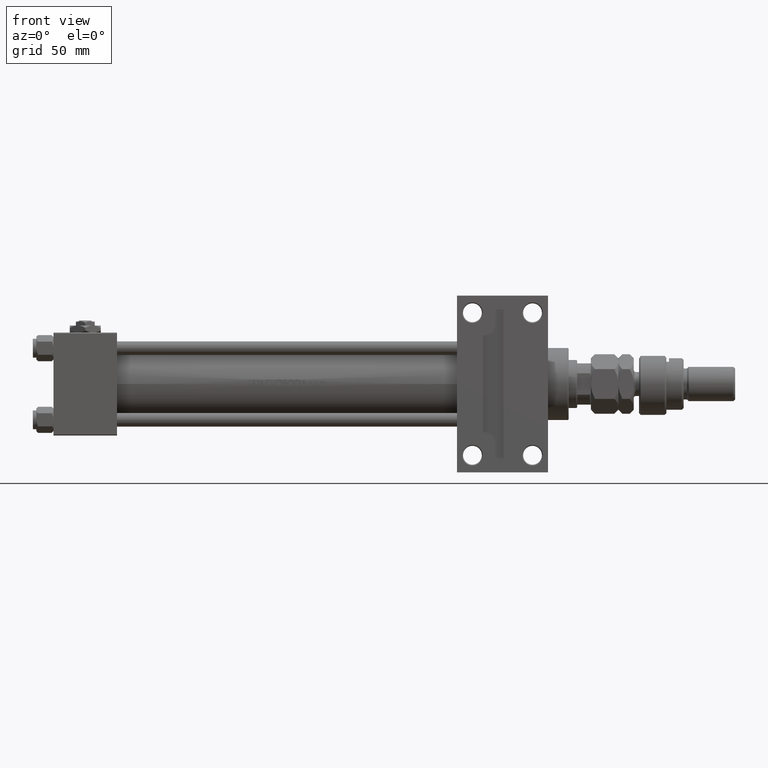
[diagram: clean part render]
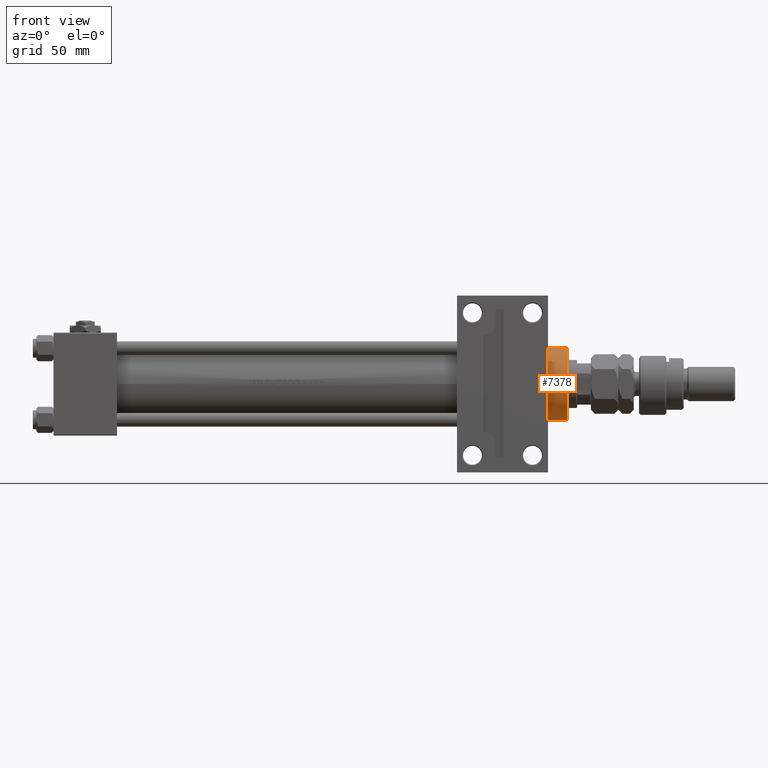
[diagram: same view with one face highlighted and labeled with its STEP entity id]
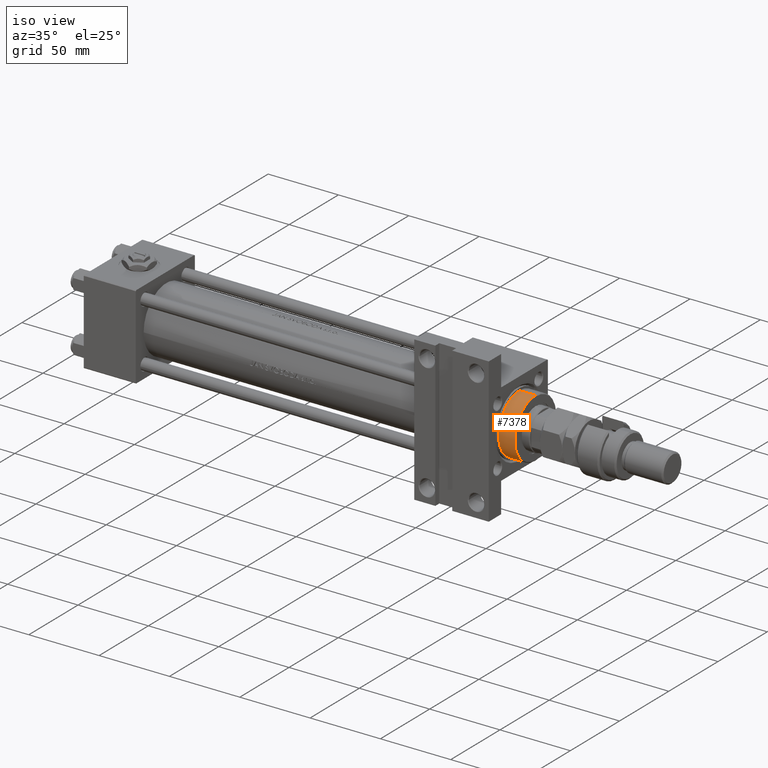
[diagram: same view with one face highlighted and labeled with its STEP entity id]
A machine part, front view. The second image highlights one B-rep face of the part: STEP entity #7378.
A second angle (iso view) of the same face is appended — the face is thin or edge-on in the first view.
In plain terms, the highlighted cylindrical surface (edge-blend (fillet) strip) has radius 21 mm, axis along (-1, 0, 0).
Its self-contained STEP definition (entity closure, byte-faithful):
#388 = DIRECTION ( 'NONE',  ( 1.000000000000000000, 0.000000000000000000, 0.000000000000000000 ) ) ;
#1167 = EDGE_LOOP ( 'NONE', ( #6763, #34110, #52890, #28344 ) ) ;
#1184 = DIRECTION ( 'NONE',  ( -1.000000000000000000, 0.000000000000000000, 0.000000000000000000 ) ) ;
#1404 = CARTESIAN_POINT ( 'NONE',  ( -21.00000000000000000, 0.000000000000000000, 28.69999999999999929 ) ) ;
#4187 = CARTESIAN_POINT ( 'NONE',  ( 21.00000000000000000, 2.571758278209441661E-15, 40.19999999999998863 ) ) ;
#6087 = CARTESIAN_POINT ( 'NONE',  ( 21.00000000000000000, 2.571758278209441661E-15, 40.70000000000000284 ) ) ;
#6763 = ORIENTED_EDGE ( 'NONE', *, *, #15340, .T. ) ;
#7378 = ADVANCED_FACE ( 'NONE', ( #18941 ), #27079, .T. ) ;
#8698 = VERTEX_POINT ( 'NONE', #19551 ) ;
#10091 = VERTEX_POINT ( 'NONE', #18767 ) ;
#11218 = DIRECTION ( 'NONE',  ( 0.000000000000000000, 0.000000000000000000, 1.000000000000000000 ) ) ;
#13637 = CARTESIAN_POINT ( 'NONE',  ( 0.000000000000000000, 0.000000000000000000, 40.19999999999998863 ) ) ;
#15340 = EDGE_CURVE ( 'NONE', #8698, #28115, #35192, .T. ) ;
#15732 = VERTEX_POINT ( 'NONE', #1404 ) ;
#15814 = DIRECTION ( 'NONE',  ( 1.000000000000000000, 0.000000000000000000, 0.000000000000000000 ) ) ;
#16694 = CIRCLE ( 'NONE', #47906, 21.00000000000000000 ) ;
#18767 = CARTESIAN_POINT ( 'NONE',  ( 21.00000000000000000, 2.571758278209441661E-15, 28.69999999999999929 ) ) ;
#18941 = FACE_OUTER_BOUND ( 'NONE', #1167, .T. ) ;
#19070 = DIRECTION ( 'NONE',  ( -0.000000000000000000, -0.000000000000000000, -1.000000000000000000 ) ) ;
#19551 = CARTESIAN_POINT ( 'NONE',  ( -21.00000000000000000, 0.000000000000000000, 40.19999999999998863 ) ) ;
#22017 = CARTESIAN_POINT ( 'NONE',  ( 0.000000000000000000, 0.000000000000000000, 40.70000000000000284 ) ) ;
#22488 = DIRECTION ( 'NONE',  ( -0.000000000000000000, -0.000000000000000000, -1.000000000000000000 ) ) ;
#23020 = CARTESIAN_POINT ( 'NONE',  ( -21.00000000000000000, 0.000000000000000000, 40.70000000000000284 ) ) ;
#25019 = DIRECTION ( 'NONE',  ( 0.000000000000000000, 0.000000000000000000, -1.000000000000000000 ) ) ;
#26816 = LINE ( 'NONE', #23020, #31246 ) ;
#26893 = VECTOR ( 'NONE', #19070, 1000.000000000000000 ) ;
#27079 = CYLINDRICAL_SURFACE ( 'NONE', #35014, 21.00000000000000000 ) ;
#27411 = AXIS2_PLACEMENT_3D ( 'NONE', #13637, #25019, #388 ) ;
#28115 = VERTEX_POINT ( 'NONE', #4187 ) ;
#28344 = ORIENTED_EDGE ( 'NONE', *, *, #39865, .F. ) ;
#31246 = VECTOR ( 'NONE', #22488, 1000.000000000000000 ) ;
#34110 = ORIENTED_EDGE ( 'NONE', *, *, #39412, .T. ) ;
#35014 = AXIS2_PLACEMENT_3D ( 'NONE', #22017, #43904, #1184 ) ;
#35192 = CIRCLE ( 'NONE', #27411, 21.00000000000000000 ) ;
#36430 = CARTESIAN_POINT ( 'NONE',  ( 0.000000000000000000, 0.000000000000000000, 28.69999999999999929 ) ) ;
#39412 = EDGE_CURVE ( 'NONE', #28115, #10091, #48386, .T. ) ;
#39865 = EDGE_CURVE ( 'NONE', #8698, #15732, #26816, .T. ) ;
#43769 = EDGE_CURVE ( 'NONE', #10091, #15732, #16694, .T. ) ;
#43904 = DIRECTION ( 'NONE',  ( -0.000000000000000000, -0.000000000000000000, -1.000000000000000000 ) ) ;
#47906 = AXIS2_PLACEMENT_3D ( 'NONE', #36430, #11218, #15814 ) ;
#48386 = LINE ( 'NONE', #6087, #26893 ) ;
#52890 = ORIENTED_EDGE ( 'NONE', *, *, #43769, .T. ) ;